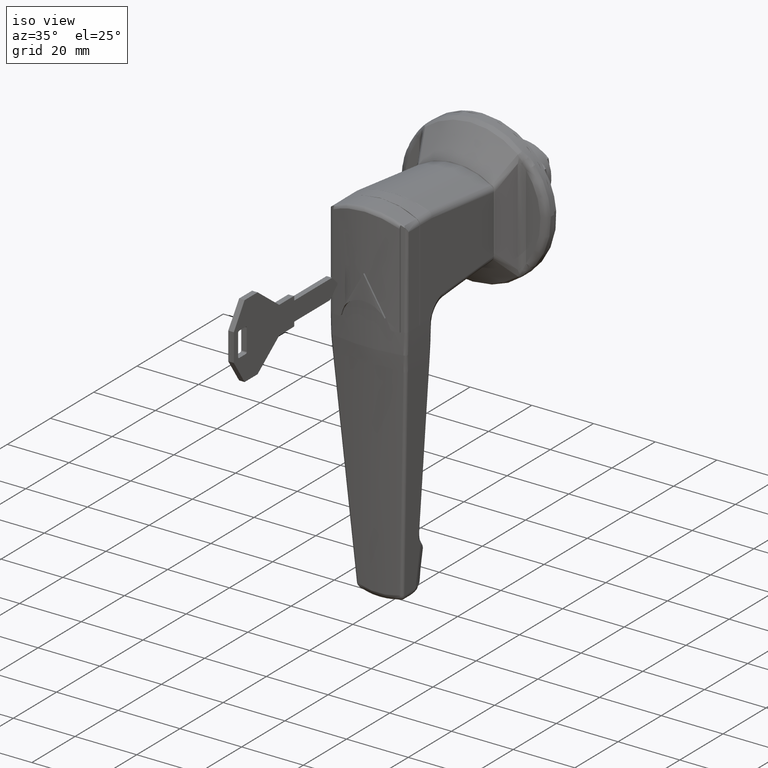
[diagram: clean part render]
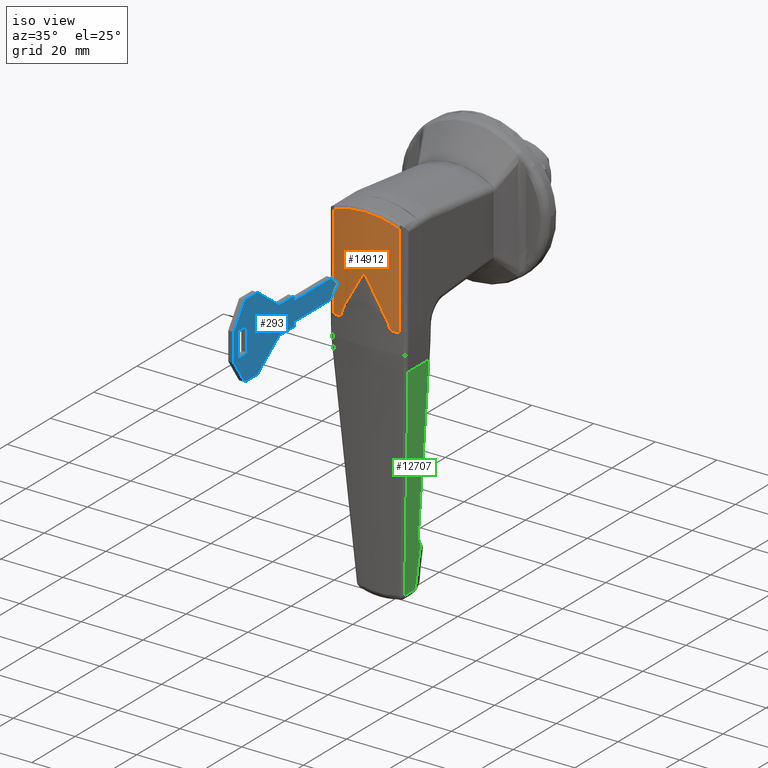
[diagram: same view with three faces highlighted in distinct colors, each labeled with its STEP entity id]
A machine part, iso view with three faces highlighted in distinct colors.
Their STEP definitions:

[orange] entity #14912 — the highlighted face is a freeform B-spline surface patch.
#14339=CARTESIAN_POINT('',(-43.537279000000098,10.750000000000000,13.426115094219099));
#14340=VERTEX_POINT('',#14339);
#14358=CARTESIAN_POINT('',(-43.537278215540503,-10.750000124898760,13.426114976657461));
#14359=VERTEX_POINT('',#14358);
#14360=CARTESIAN_POINT('',(-43.537278215540503,-10.750000124898779,13.426114976657461));
#14361=CARTESIAN_POINT('',(-43.686708591824612,-9.922402191567278,13.847389578444931));
#14362=CARTESIAN_POINT('',(-43.822458786155167,-9.071986116519360,14.218833909848970));
#14363=CARTESIAN_POINT('',(-43.971818558240159,-7.979948184355112,14.620840445735800));
#14364=CARTESIAN_POINT('',(-44.000673693513292,-7.760084927824916,14.698115481884690));
#14365=CARTESIAN_POINT('',(-44.056266915473032,-7.317415249934289,14.846367005541630));
#14366=CARTESIAN_POINT('',(-44.082959700022052,-7.094947018606865,14.917222255324010));
#14367=CARTESIAN_POINT('',(-44.159399970210487,-6.426342137599623,15.119366884822499));
#14368=CARTESIAN_POINT('',(-44.205619818686174,-5.978137840326531,15.240538985697871));
#14369=CARTESIAN_POINT('',(-44.329655966135171,-4.626204726149862,15.563954815738430));
#14370=CARTESIAN_POINT('',(-44.392857058287298,-3.715178835734724,15.726239507692050));
#14371=CARTESIAN_POINT('',(-44.478009653531743,-1.873522295447263,15.944214853267169));
#14372=CARTESIAN_POINT('',(-44.499968688150190,-0.942894483352474,15.999920336488390));
#14373=CARTESIAN_POINT('',(-44.500031244988733,0.938871998346723,16.000079493404151));
#14374=CARTESIAN_POINT('',(-44.478127893306848,1.869949401578251,15.944516047425680));
#14375=CARTESIAN_POINT('',(-44.393022437078471,3.712614329307406,15.726664321190331));
#14376=CARTESIAN_POINT('',(-44.329812961171861,4.624323888622818,15.564362127514631));
#14377=CARTESIAN_POINT('',(-44.205683100388207,5.977532789943253,15.240705007749010));
#14378=CARTESIAN_POINT('',(-44.159418524964337,6.426204165911926,15.119416543633511));
#14379=CARTESIAN_POINT('',(-44.082886989523452,7.095570823767758,14.917029678042320));
#14380=CARTESIAN_POINT('',(-44.056151829886289,7.318356122482541,14.846060913556929));
#14381=CARTESIAN_POINT('',(-44.000582050683860,7.760790071183724,14.697870284175750));
#14382=CARTESIAN_POINT('',(-43.971738267909892,7.980549028885677,14.620624947482790));
#14383=CARTESIAN_POINT('',(-43.822431517954087,9.072130186117951,14.218758090278261));
#14384=CARTESIAN_POINT('',(-43.686711308371450,9.922387128016606,13.847397234812870));
#14385=CARTESIAN_POINT('',(-43.537279000000098,10.750000000000000,13.426115094219099));
#14386=B_SPLINE_CURVE_WITH_KNOTS('',3,(#14360,#14361,#14362,#14363,#14364,#14365,#14366,#14367,#14368,#14369,#14370,#14371,#14372,#14373,#14374,#14375,#14376,#14377,#14378,#14379,#14380,#14381,#14382,#14383,#14384,#14385),.UNSPECIFIED.,.F.,.U.,(4,2,2,2,2,2,2,2,2,2,2,2,4),(0.0,0.125000000000000,0.156250000000000,0.187500000000000,0.250000000000000,0.375000000000000,0.500000000000000,0.625000000000000,0.750000000000000,0.812500000000000,0.843750000000000,0.875000000000000,1.0),.UNSPECIFIED.);
#14387=EDGE_CURVE('',#14359,#14340,#14386,.T.);
#14698=CARTESIAN_POINT('',(-43.537278215540503,-10.750000124898760,-17.0));
#14699=VERTEX_POINT('',#14698);
#14700=CARTESIAN_POINT('',(-43.537278215540503,-10.750000124898760,13.426114976657461));
#14701=CARTESIAN_POINT('',(-43.537278215540503,-10.750000124898760,-17.0));
#14702=QUASI_UNIFORM_CURVE('',1,(#14700,#14701),.UNSPECIFIED.,.F.,.U.);
#14703=EDGE_CURVE('',#14359,#14699,#14702,.T.);
#14713=CARTESIAN_POINT('',(-43.337462433006827,11.803200922271046,16.825000000311807));
#14714=CARTESIAN_POINT('',(-43.337462433006827,11.803200922271046,-17.845625000007797));
#14715=CARTESIAN_POINT('',(-45.685525333926883,-0.001062606852432,16.825000000311810));
#14716=CARTESIAN_POINT('',(-45.685525333926883,-0.001062606852432,-17.845625000007786));
#14717=CARTESIAN_POINT('',(-43.337055749323369,-11.805245232594203,16.825000000311810));
#14718=CARTESIAN_POINT('',(-43.337055749323369,-11.805245232594203,-17.845625000007782));
#14726=(BOUNDED_SURFACE()B_SPLINE_SURFACE(1,2,((#14713,#14715,#14717),(#14714,#14716,#14718)),.UNSPECIFIED.,.F.,.F.,.U.)B_SPLINE_SURFACE_WITH_KNOTS((2,2),(3,3),(0.0,34.670625000319603),(0.0,23.837504803303339),.UNSPECIFIED.)GEOMETRIC_REPRESENTATION_ITEM()RATIONAL_B_SPLINE_SURFACE(((0.998777720247082,0.978586662766848,0.996748349218564),(0.998777720247082,0.978586662766848,0.996748349218564)))REPRESENTATION_ITEM('')SURFACE());
#14727=CARTESIAN_POINT('',(-43.995087250165803,7.799968323332790,-16.222222130015648));
#14728=VERTEX_POINT('',#14727);
#14729=CARTESIAN_POINT('',(-44.137342838481949,6.614377999999999,-13.499999999999719));
#14730=VERTEX_POINT('',#14729);
#14731=CARTESIAN_POINT('',(-43.995087250165803,7.799968323332790,-16.222222130015648));
#14732=CARTESIAN_POINT('',(-44.008011266776037,7.700557277176603,-15.786072890913610));
#14733=CARTESIAN_POINT('',(-44.025410424252492,7.565067411216221,-15.359256640164050));
#14734=CARTESIAN_POINT('',(-44.051971471999131,7.349316491213052,-14.837705728991530));
#14735=CARTESIAN_POINT('',(-44.057537495075529,7.303719255530198,-14.733771608657360));
#14736=CARTESIAN_POINT('',(-44.069031400243119,7.208576080806815,-14.528838259513689));
#14737=CARTESIAN_POINT('',(-44.074964273674922,7.158991483897222,-14.427715608141870));
#14738=CARTESIAN_POINT('',(-44.093263744136038,7.004298722087343,-14.128309470296630));
#14739=CARTESIAN_POINT('',(-44.106130933475427,6.893262186731714,-13.933980774554099));
#14740=CARTESIAN_POINT('',(-44.125364767548469,6.722570540497400,-13.662235812897229));
#14741=CARTESIAN_POINT('',(-44.131310134508951,6.669216534792989,-13.580624119799729));
#14742=CARTESIAN_POINT('',(-44.137342838481949,6.614377999999999,-13.499999999999719));
#14743=B_SPLINE_CURVE_WITH_KNOTS('',3,(#14731,#14732,#14733,#14734,#14735,#14736,#14737,#14738,#14739,#14740,#14741,#14742),.UNSPECIFIED.,.F.,.U.,(4,2,2,2,2,4),(0.0,0.062500000000000,0.078125000000000,0.093750000000000,0.125000000000000,0.138645389448752),.UNSPECIFIED.);
#14744=EDGE_CURVE('',#14728,#14730,#14743,.T.);
#14745=ORIENTED_EDGE('',*,*,#14744,.T.);
#14746=CARTESIAN_POINT('',(-44.134571334608353,6.639527874999950,-13.499999999999741));
#14747=VERTEX_POINT('',#14746);
#14748=CARTESIAN_POINT('',(-44.137342838481949,6.614377999999999,-13.499999999999741));
#14749=CARTESIAN_POINT('',(-44.135959716072030,6.626953227262900,-13.499999999999744));
#14750=CARTESIAN_POINT('',(-44.134571334608331,6.639527874999948,-13.499999999999741));
#14758=(BOUNDED_CURVE()B_SPLINE_CURVE(2,(#14748,#14749,#14750),.UNSPECIFIED.,.F.,.U.)CURVE()GEOMETRIC_REPRESENTATION_ITEM()QUASI_UNIFORM_CURVE()RATIONAL_B_SPLINE_CURVE((1.0,0.999999978136826,1.0))REPRESENTATION_ITEM(''));
#14759=EDGE_CURVE('',#14730,#14747,#14758,.T.);
#14760=ORIENTED_EDGE('',*,*,#14759,.T.);
#14761=CARTESIAN_POINT('',(-44.500000000000000,0.0,-2.0));
#14762=VERTEX_POINT('',#14761);
#14763=CARTESIAN_POINT('',(-44.134571334608331,6.639527874999965,-13.499999999999741));
#14764=CARTESIAN_POINT('',(-44.500000000000000,3.329820233068273,-7.767418015439009));
#14765=CARTESIAN_POINT('',(-44.500000000000000,3.704434E-015,-2.000000000000007));
#14773=(BOUNDED_CURVE()B_SPLINE_CURVE(2,(#14763,#14764,#14765),.UNSPECIFIED.,.F.,.U.)CURVE()GEOMETRIC_REPRESENTATION_ITEM()QUASI_UNIFORM_CURVE()RATIONAL_B_SPLINE_CURVE((1.0,0.998488822363744,1.0))REPRESENTATION_ITEM(''));
#14774=EDGE_CURVE('',#14747,#14762,#14773,.T.);
#14775=ORIENTED_EDGE('',*,*,#14774,.T.);
#14776=CARTESIAN_POINT('',(-44.134571320806963,-6.639527999999999,-13.499999999999741));
#14777=VERTEX_POINT('',#14776);
#14778=CARTESIAN_POINT('',(-44.500000000000000,1.111330E-014,-1.999999999999981));
#14779=CARTESIAN_POINT('',(-44.500000000000007,-3.329820248835866,-7.767418042749276));
#14780=CARTESIAN_POINT('',(-44.134571320806963,-6.639527999999999,-13.499999999999741));
#14788=(BOUNDED_CURVE()B_SPLINE_CURVE(2,(#14778,#14779,#14780),.UNSPECIFIED.,.F.,.U.)CURVE()GEOMETRIC_REPRESENTATION_ITEM()QUASI_UNIFORM_CURVE()RATIONAL_B_SPLINE_CURVE((1.0,0.998488822349251,1.0))REPRESENTATION_ITEM(''));
#14789=EDGE_CURVE('',#14762,#14777,#14788,.T.);
#14790=ORIENTED_EDGE('',*,*,#14789,.T.);
#14791=CARTESIAN_POINT('',(-44.137342807942552,-6.614378277661491,-13.499999999999741));
#14792=VERTEX_POINT('',#14791);
#14793=CARTESIAN_POINT('',(-44.134571320806927,-6.639527999999993,-13.499999999999741));
#14794=CARTESIAN_POINT('',(-44.135959693869111,-6.626953428595621,-13.499999999999742));
#14795=CARTESIAN_POINT('',(-44.137342807942552,-6.614378277661513,-13.499999999999741));
#14803=(BOUNDED_CURVE()B_SPLINE_CURVE(2,(#14793,#14794,#14795),.UNSPECIFIED.,.F.,.U.)CURVE()GEOMETRIC_REPRESENTATION_ITEM()QUASI_UNIFORM_CURVE()RATIONAL_B_SPLINE_CURVE((1.0,0.999999978137092,1.0))REPRESENTATION_ITEM(''));
#14804=EDGE_CURVE('',#14777,#14792,#14803,.T.);
#14805=ORIENTED_EDGE('',*,*,#14804,.T.);
#14806=CARTESIAN_POINT('',(-43.995087293629901,-7.799967989019470,-16.222222362898101));
#14807=VERTEX_POINT('',#14806);
#14808=CARTESIAN_POINT('',(-44.137342807942552,-6.614378277661491,-13.499999999999741));
#14809=CARTESIAN_POINT('',(-44.131298120357812,-6.669335661255566,-13.580780432788631));
#14810=CARTESIAN_POINT('',(-44.125346010058813,-6.722756579040190,-13.662487155540891));
#14811=CARTESIAN_POINT('',(-44.092732048890262,-7.012179301676098,-14.123306641007140));
#14812=CARTESIAN_POINT('',(-44.068144593405087,-7.217916513121144,-14.520681940746019));
#14813=CARTESIAN_POINT('',(-44.041546378487972,-7.434015494206209,-15.042274447424900));
#14814=CARTESIAN_POINT('',(-44.036425023933582,-7.475237834955387,-15.148060283879699));
#14815=CARTESIAN_POINT('',(-44.026718217799747,-7.552788466590473,-15.360278327841190));
#14816=CARTESIAN_POINT('',(-44.022123121213248,-7.589196550540373,-15.466878031313581));
#14817=CARTESIAN_POINT('',(-44.009137603486167,-7.691431436974204,-15.788126879079179));
#14818=CARTESIAN_POINT('',(-44.001547051387533,-7.750281190647446,-16.004223245653431));
#14819=CARTESIAN_POINT('',(-43.995087293629901,-7.799967989019470,-16.222222362898101));
#14820=B_SPLINE_CURVE_WITH_KNOTS('',3,(#14808,#14809,#14810,#14811,#14812,#14813,#14814,#14815,#14816,#14817,#14818,#14819),.UNSPECIFIED.,.F.,.U.,(4,2,2,2,2,4),(0.861344992751440,0.874999999999999,0.937499999999999,0.953125000000000,0.968750000000000,1.0),.UNSPECIFIED.);
#14821=EDGE_CURVE('',#14792,#14807,#14820,.T.);
#14822=ORIENTED_EDGE('',*,*,#14821,.T.);
#14823=CARTESIAN_POINT('',(-43.860253982076500,-8.774963999999999,-17.0));
#14824=VERTEX_POINT('',#14823);
#14825=CARTESIAN_POINT('',(-43.860253982076451,-8.774963999999999,-17.0));
#14826=CARTESIAN_POINT('',(-43.876780436062361,-8.662225334289175,-17.0));
#14827=CARTESIAN_POINT('',(-43.892532015086680,-8.552554872794634,-16.981464846931448));
#14828=CARTESIAN_POINT('',(-43.915071956085818,-8.392678297459419,-16.925765849467169));
#14829=CARTESIAN_POINT('',(-43.922209379548178,-8.341537874184741,-16.902911999885092));
#14830=CARTESIAN_POINT('',(-43.935725930092779,-8.243857608284648,-16.849137378022419));
#14831=CARTESIAN_POINT('',(-43.942116036930663,-8.197238770117522,-16.818189455301940));
#14832=CARTESIAN_POINT('',(-43.954164578364797,-8.108646505399276,-16.747811087373702));
#14833=CARTESIAN_POINT('',(-43.959682793402990,-8.067704664220178,-16.709163807993271));
#14834=CARTESIAN_POINT('',(-43.969683645725297,-7.993025876738636,-16.625860883907698));
#14835=CARTESIAN_POINT('',(-43.974183734213078,-7.959159255166562,-16.581103189666550));
#14836=CARTESIAN_POINT('',(-43.982179829459007,-7.898672897436208,-16.485110505246929));
#14837=CARTESIAN_POINT('',(-43.985586329145953,-7.872731575007244,-16.434883559816480));
#14838=CARTESIAN_POINT('',(-43.991211360034583,-7.829752822356245,-16.331244454993989));
#14839=CARTESIAN_POINT('',(-43.993444723230297,-7.812602163242711,-16.277654540420940));
#14840=CARTESIAN_POINT('',(-43.995087293629886,-7.799967989019451,-16.222222362898108));
#14841=B_SPLINE_CURVE_WITH_KNOTS('',3,(#14825,#14826,#14827,#14828,#14829,#14830,#14831,#14832,#14833,#14834,#14835,#14836,#14837,#14838,#14839,#14840),.UNSPECIFIED.,.F.,.U.,(4,2,2,2,2,2,2,4),(0.0,0.250000000000002,0.375000000000001,0.500000000000001,0.625000000000001,0.750000000000000,0.875000000000000,1.0),.UNSPECIFIED.);
#14842=EDGE_CURVE('',#14824,#14807,#14841,.T.);
#14843=ORIENTED_EDGE('',*,*,#14842,.F.);
#14844=CARTESIAN_POINT('',(-43.537278215540532,-10.750000124898760,-17.0));
#14845=CARTESIAN_POINT('',(-43.715101309523725,-9.765153343817886,-17.0));
#14846=CARTESIAN_POINT('',(-43.860253982076493,-8.774963999999995,-17.0));
#14854=(BOUNDED_CURVE()B_SPLINE_CURVE(2,(#14844,#14845,#14846),.UNSPECIFIED.,.F.,.U.)CURVE()GEOMETRIC_REPRESENTATION_ITEM()QUASI_UNIFORM_CURVE()RATIONAL_B_SPLINE_CURVE((1.0,0.999863214432832,1.0))REPRESENTATION_ITEM(''));
#14855=EDGE_CURVE('',#14699,#14824,#14854,.T.);
#14856=ORIENTED_EDGE('',*,*,#14855,.F.);
#14857=ORIENTED_EDGE('',*,*,#14703,.F.);
#14858=ORIENTED_EDGE('',*,*,#14387,.T.);
#14859=CARTESIAN_POINT('',(-43.537279000000098,10.750000000000000,-17.0));
#14860=VERTEX_POINT('',#14859);
#14861=CARTESIAN_POINT('',(-43.537279000000098,10.750000000000000,13.426115094219099));
#14862=CARTESIAN_POINT('',(-43.537279000000098,10.750000000000000,-17.0));
#14863=QUASI_UNIFORM_CURVE('',1,(#14861,#14862),.UNSPECIFIED.,.F.,.U.);
#14864=EDGE_CURVE('',#14340,#14860,#14863,.T.);
#14865=ORIENTED_EDGE('',*,*,#14864,.T.);
#14866=CARTESIAN_POINT('',(-43.860253982076451,8.774963999999999,-17.0));
#14867=VERTEX_POINT('',#14866);
#14868=CARTESIAN_POINT('',(-43.860253982076493,8.774963999999981,-17.0));
#14869=CARTESIAN_POINT('',(-43.715101328550944,9.765153214019755,-16.999999999999996));
#14870=CARTESIAN_POINT('',(-43.537279000000098,10.750000000000000,-17.0));
#14878=(BOUNDED_CURVE()B_SPLINE_CURVE(2,(#14868,#14869,#14870),.UNSPECIFIED.,.F.,.U.)CURVE()GEOMETRIC_REPRESENTATION_ITEM()QUASI_UNIFORM_CURVE()RATIONAL_B_SPLINE_CURVE((1.0,0.999863214468686,1.0))REPRESENTATION_ITEM(''));
#14879=EDGE_CURVE('',#14867,#14860,#14878,.T.);
#14880=ORIENTED_EDGE('',*,*,#14879,.F.);
#14881=CARTESIAN_POINT('',(-43.995087250165803,7.799968323332790,-16.222222130015648));
#14882=CARTESIAN_POINT('',(-43.994276627142497,7.806203400110804,-16.249580120712618));
#14883=CARTESIAN_POINT('',(-43.993314426683192,7.813597050715172,-16.276714841398551));
#14884=CARTESIAN_POINT('',(-43.991078461097970,7.830745803830358,-16.330529140393999));
#14885=CARTESIAN_POINT('',(-43.989797823252012,7.840553327629167,-16.357316330083972));
#14886=CARTESIAN_POINT('',(-43.985544405236148,7.873051494791209,-16.435599461074879));
#14887=CARTESIAN_POINT('',(-43.982155013780137,7.898859797768155,-16.485365029371849));
#14888=CARTESIAN_POINT('',(-43.976237346408837,7.943625137034108,-16.556471150329418));
#14889=CARTESIAN_POINT('',(-43.974125081956828,7.959561150638549,-16.579579644594279));
#14890=CARTESIAN_POINT('',(-43.969611049513077,7.993500086137214,-16.624586681338211));
#14891=CARTESIAN_POINT('',(-43.967199125887468,8.011578420677212,-16.646556789885260));
#14892=CARTESIAN_POINT('',(-43.959645957381952,8.067979663051181,-16.709468849469740));
#14893=CARTESIAN_POINT('',(-43.954160791339483,8.108671222570457,-16.747778507482160));
#14894=CARTESIAN_POINT('',(-43.945246211009142,8.174224305637617,-16.799932190872550));
#14895=CARTESIAN_POINT('',(-43.942159641414577,8.196831970708004,-16.816426904199549));
#14896=CARTESIAN_POINT('',(-43.935747250601629,8.243588923815413,-16.847602537516231));
#14897=CARTESIAN_POINT('',(-43.932409438777277,8.267824055782889,-16.862320511328161));
#14898=CARTESIAN_POINT('',(-43.922205914861500,8.341564680287974,-16.902948159522090));
#14899=CARTESIAN_POINT('',(-43.915104476577547,8.392441352876658,-16.925621553242269));
#14900=CARTESIAN_POINT('',(-43.903992928581573,8.471265270761956,-16.953174585638131));
#14901=CARTESIAN_POINT('',(-43.900212200241270,8.497960281450830,-16.961277072773321));
#14902=CARTESIAN_POINT('',(-43.892491236948260,8.552206967276142,-16.975276358321992));
#14903=CARTESIAN_POINT('',(-43.888539504254020,8.579837851971240,-16.981179686106259));
#14904=CARTESIAN_POINT('',(-43.876607509258491,8.662851681580305,-16.995279854285730));
#14905=CARTESIAN_POINT('',(-43.868506039671452,8.718670861531111,-17.0));
#14906=CARTESIAN_POINT('',(-43.860253982076451,8.774963999999999,-17.0));
#14907=B_SPLINE_CURVE_WITH_KNOTS('',3,(#14881,#14882,#14883,#14884,#14885,#14886,#14887,#14888,#14889,#14890,#14891,#14892,#14893,#14894,#14895,#14896,#14897,#14898,#14899,#14900,#14901,#14902,#14903,#14904,#14905,#14906),.UNSPECIFIED.,.F.,.U.,(4,2,2,2,2,2,2,2,2,2,2,2,4),(0.0,0.062499999999997,0.124999999999994,0.249999999999997,0.312500000000003,0.375000000000009,0.500000000000017,0.562500000000019,0.625000000000021,0.750000000000019,0.812500000000015,0.875000000000012,1.0),.UNSPECIFIED.);
#14908=EDGE_CURVE('',#14728,#14867,#14907,.T.);
#14909=ORIENTED_EDGE('',*,*,#14908,.F.);
#14910=EDGE_LOOP('',(#14745,#14760,#14775,#14790,#14805,#14822,#14843,#14856,#14857,#14858,#14865,#14880,#14909));
#14911=FACE_OUTER_BOUND('',#14910,.T.);
#14912=ADVANCED_FACE('',(#14911),#14726,.T.);

[blue] entity #293 — the highlighted face is a freeform B-spline surface patch.
#44=CARTESIAN_POINT('',(-103.733763654037300,-0.900000000000000,13.198799953483350));
#45=CARTESIAN_POINT('',(-50.938627942001659,-0.900000000000000,13.198799953483350));
#46=CARTESIAN_POINT('',(-103.733763654037300,-0.900000000000000,-13.198800597213509));
#47=CARTESIAN_POINT('',(-50.938627942001659,-0.900000000000000,-13.198800597213509));
#48=B_SPLINE_SURFACE_WITH_KNOTS('',1,1,((#44,#46),(#45,#47)),.UNSPECIFIED.,.F.,.F.,.U.,(2,2),(2,2),(0.0,52.795135712035659),(0.0,26.397600550696851),.UNSPECIFIED.);
#49=CARTESIAN_POINT('',(-101.336164999999990,-0.900000000000012,4.500000582522990));
#50=VERTEX_POINT('',#49);
#51=CARTESIAN_POINT('',(-96.336164569421712,-0.900000000000012,12.0));
#52=VERTEX_POINT('',#51);
#53=CARTESIAN_POINT('',(-101.336164999999990,-0.900000000000012,4.500000582522990));
#54=CARTESIAN_POINT('',(-96.336164569421712,-0.900000000000012,12.0));
#55=QUASI_UNIFORM_CURVE('',1,(#53,#54),.UNSPECIFIED.,.F.,.U.);
#56=EDGE_CURVE('',#50,#52,#55,.T.);
#57=ORIENTED_EDGE('',*,*,#56,.F.);
#58=CARTESIAN_POINT('',(-101.336164999999990,-0.900000000000012,-4.500000582522980));
#59=VERTEX_POINT('',#58);
#60=CARTESIAN_POINT('',(-101.336164999999990,-0.900000000000012,-4.500000582522980));
#61=CARTESIAN_POINT('',(-101.336164999999990,-0.900000000000012,4.500000582522990));
#62=QUASI_UNIFORM_CURVE('',1,(#60,#61),.UNSPECIFIED.,.F.,.U.);
#63=EDGE_CURVE('',#59,#50,#62,.T.);
#64=ORIENTED_EDGE('',*,*,#63,.F.);
#65=CARTESIAN_POINT('',(-96.336164569421712,-0.900000000000012,-12.0));
#66=VERTEX_POINT('',#65);
#67=CARTESIAN_POINT('',(-96.336164569421712,-0.900000000000012,-12.0));
#68=CARTESIAN_POINT('',(-101.336164999999990,-0.900000000000012,-4.500000582522980));
#69=QUASI_UNIFORM_CURVE('',1,(#67,#68),.UNSPECIFIED.,.F.,.U.);
#70=EDGE_CURVE('',#66,#59,#69,.T.);
#71=ORIENTED_EDGE('',*,*,#70,.F.);
#72=CARTESIAN_POINT('',(-90.336165352112701,-0.900000000000012,-12.0));
#73=VERTEX_POINT('',#72);
#74=CARTESIAN_POINT('',(-90.336165352112701,-0.900000000000012,-12.0));
#75=CARTESIAN_POINT('',(-96.336164569421712,-0.900000000000012,-12.0));
#76=QUASI_UNIFORM_CURVE('',1,(#74,#75),.UNSPECIFIED.,.F.,.U.);
#77=EDGE_CURVE('',#73,#66,#76,.T.);
#78=ORIENTED_EDGE('',*,*,#77,.F.);
#79=CARTESIAN_POINT('',(-80.336164999999909,-0.900000000000012,-4.500000000000000));
#80=VERTEX_POINT('',#79);
#81=CARTESIAN_POINT('',(-80.336164999999909,-0.900000000000012,-4.500000000000000));
#82=CARTESIAN_POINT('',(-90.336165352112701,-0.900000000000012,-12.0));
#83=QUASI_UNIFORM_CURVE('',1,(#81,#82),.UNSPECIFIED.,.F.,.U.);
#84=EDGE_CURVE('',#80,#73,#83,.T.);
#85=ORIENTED_EDGE('',*,*,#84,.F.);
#86=CARTESIAN_POINT('',(-73.636164999999892,-0.900000000000012,-4.500000000000000));
#87=VERTEX_POINT('',#86);
#88=CARTESIAN_POINT('',(-73.636164999999892,-0.900000000000012,-4.500000000000000));
#89=CARTESIAN_POINT('',(-80.336164999999909,-0.900000000000012,-4.500000000000000));
#90=QUASI_UNIFORM_CURVE('',1,(#88,#89),.UNSPECIFIED.,.F.,.U.);
#91=EDGE_CURVE('',#87,#80,#90,.T.);
#92=ORIENTED_EDGE('',*,*,#91,.F.);
#93=CARTESIAN_POINT('',(-73.336164999999895,-0.900000000000012,-4.200000000000045));
#94=VERTEX_POINT('',#93);
#95=CARTESIAN_POINT('',(-73.636164999999892,-0.900000000000012,-4.500000000000044));
#96=CARTESIAN_POINT('',(-73.336164999999895,-0.900000000000012,-4.500000000000044));
#97=CARTESIAN_POINT('',(-73.336164999999895,-0.900000000000012,-4.200000000000045));
#105=(BOUNDED_CURVE()B_SPLINE_CURVE(2,(#95,#96,#97),.UNSPECIFIED.,.F.,.U.)CURVE()GEOMETRIC_REPRESENTATION_ITEM()QUASI_UNIFORM_CURVE()RATIONAL_B_SPLINE_CURVE((1.0,0.707106781186547,1.0))REPRESENTATION_ITEM(''));
#106=EDGE_CURVE('',#87,#94,#105,.T.);
#107=ORIENTED_EDGE('',*,*,#106,.T.);
#108=CARTESIAN_POINT('',(-73.336164999999895,-0.900000000000012,-3.100000000000000));
#109=VERTEX_POINT('',#108);
#110=CARTESIAN_POINT('',(-73.336164999999895,-0.900000000000012,-3.100000000000000));
#111=CARTESIAN_POINT('',(-73.336164999999895,-0.900000000000012,-4.200000000000045));
#112=QUASI_UNIFORM_CURVE('',1,(#110,#111),.UNSPECIFIED.,.F.,.U.);
#113=EDGE_CURVE('',#109,#94,#112,.T.);
#114=ORIENTED_EDGE('',*,*,#113,.F.);
#115=CARTESIAN_POINT('',(-56.836164999999902,-0.900000000000012,-3.100000000000000));
#116=VERTEX_POINT('',#115);
#117=CARTESIAN_POINT('',(-56.836164999999902,-0.900000000000012,-3.100000000000000));
#118=CARTESIAN_POINT('',(-73.336164999999895,-0.900000000000012,-3.100000000000000));
#119=QUASI_UNIFORM_CURVE('',1,(#117,#118),.UNSPECIFIED.,.F.,.U.);
#120=EDGE_CURVE('',#116,#109,#119,.T.);
#121=ORIENTED_EDGE('',*,*,#120,.F.);
#122=CARTESIAN_POINT('',(-53.494070531371797,-0.900000000000012,0.035347597657623));
#123=VERTEX_POINT('',#122);
#124=CARTESIAN_POINT('',(-53.494070531371797,-0.900000000000012,0.035347597657623));
#125=CARTESIAN_POINT('',(-56.836164999999902,-0.900000000000012,-3.100000000000000));
#126=QUASI_UNIFORM_CURVE('',1,(#124,#125),.UNSPECIFIED.,.F.,.U.);
#127=EDGE_CURVE('',#123,#116,#126,.T.);
#128=ORIENTED_EDGE('',*,*,#127,.F.);
#129=CARTESIAN_POINT('',(-53.483146999999903,-0.900000000000012,0.754087999999854));
#130=VERTEX_POINT('',#129);
#131=CARTESIAN_POINT('',(-53.494070531371790,-0.900000000000012,0.035347597657615));
#132=CARTESIAN_POINT('',(-53.339444645979249,-0.900000000000012,0.180408098451601));
#133=CARTESIAN_POINT('',(-53.336222735864631,-0.900000000000012,0.392401807365908));
#134=CARTESIAN_POINT('',(-53.333000825750013,-0.900000000000012,0.604395516280215));
#135=CARTESIAN_POINT('',(-53.483146999999903,-0.900000000000012,0.754087999999854));
#143=(BOUNDED_CURVE()B_SPLINE_CURVE(2,(#131,#132,#133,#134,#135),.UNSPECIFIED.,.F.,.U.)B_SPLINE_CURVE_WITH_KNOTS((3,2,3),(0.0,0.500000000000000,1.0),.UNSPECIFIED.)CURVE()GEOMETRIC_REPRESENTATION_ITEM()RATIONAL_B_SPLINE_CURVE((1.0,0.920649968654274,1.0,0.920649968654274,1.0))REPRESENTATION_ITEM(''));
#144=EDGE_CURVE('',#123,#130,#143,.T.);
#145=ORIENTED_EDGE('',*,*,#144,.T.);
#146=CARTESIAN_POINT('',(-55.836164999999902,-0.900000000000012,3.099999999999850));
#147=VERTEX_POINT('',#146);
#148=CARTESIAN_POINT('',(-55.836164999999902,-0.900000000000012,3.099999999999850));
#149=CARTESIAN_POINT('',(-53.483146999999903,-0.900000000000012,0.754087999999854));
#150=QUASI_UNIFORM_CURVE('',1,(#148,#149),.UNSPECIFIED.,.F.,.U.);
#151=EDGE_CURVE('',#147,#130,#150,.T.);
#152=ORIENTED_EDGE('',*,*,#151,.F.);
#153=CARTESIAN_POINT('',(-73.336164999999895,-0.900000000000012,3.099999999999850));
#154=VERTEX_POINT('',#153);
#155=CARTESIAN_POINT('',(-73.336164999999895,-0.900000000000012,3.099999999999850));
#156=CARTESIAN_POINT('',(-55.836164999999902,-0.900000000000012,3.099999999999850));
#157=QUASI_UNIFORM_CURVE('',1,(#155,#156),.UNSPECIFIED.,.F.,.U.);
#158=EDGE_CURVE('',#154,#147,#157,.T.);
#159=ORIENTED_EDGE('',*,*,#158,.F.);
#160=CARTESIAN_POINT('',(-73.336164999999895,-0.900000000000012,4.199999999999760));
#161=VERTEX_POINT('',#160);
#162=CARTESIAN_POINT('',(-73.336164999999895,-0.900000000000012,4.199999999999760));
#163=CARTESIAN_POINT('',(-73.336164999999895,-0.900000000000012,3.099999999999850));
#164=QUASI_UNIFORM_CURVE('',1,(#162,#163),.UNSPECIFIED.,.F.,.U.);
#165=EDGE_CURVE('',#161,#154,#164,.T.);
#166=ORIENTED_EDGE('',*,*,#165,.F.);
#167=CARTESIAN_POINT('',(-73.636164999999892,-0.900000000000012,4.499999999999885));
#168=VERTEX_POINT('',#167);
#169=CARTESIAN_POINT('',(-73.336164999999895,-0.900000000000012,4.199999999999760));
#170=CARTESIAN_POINT('',(-73.336164999999895,-0.900000000000012,4.499999999999758));
#171=CARTESIAN_POINT('',(-73.636164999999892,-0.900000000000012,4.499999999999759));
#179=(BOUNDED_CURVE()B_SPLINE_CURVE(2,(#169,#170,#171),.UNSPECIFIED.,.F.,.U.)CURVE()GEOMETRIC_REPRESENTATION_ITEM()QUASI_UNIFORM_CURVE()RATIONAL_B_SPLINE_CURVE((1.0,0.707106781186547,1.0))REPRESENTATION_ITEM(''));
#180=EDGE_CURVE('',#161,#168,#179,.T.);
#181=ORIENTED_EDGE('',*,*,#180,.T.);
#182=CARTESIAN_POINT('',(-80.336164999999909,-0.900000000000012,4.499999999999885));
#183=VERTEX_POINT('',#182);
#184=CARTESIAN_POINT('',(-80.336164999999909,-0.900000000000012,4.499999999999885));
#185=CARTESIAN_POINT('',(-73.636164999999892,-0.900000000000012,4.499999999999885));
#186=QUASI_UNIFORM_CURVE('',1,(#184,#185),.UNSPECIFIED.,.F.,.U.);
#187=EDGE_CURVE('',#183,#168,#186,.T.);
#188=ORIENTED_EDGE('',*,*,#187,.F.);
#189=CARTESIAN_POINT('',(-90.336165352112786,-0.900000000000012,12.0));
#190=VERTEX_POINT('',#189);
#191=CARTESIAN_POINT('',(-90.336165352112786,-0.900000000000012,12.0));
#192=CARTESIAN_POINT('',(-80.336164999999909,-0.900000000000012,4.499999999999885));
#193=QUASI_UNIFORM_CURVE('',1,(#191,#192),.UNSPECIFIED.,.F.,.U.);
#194=EDGE_CURVE('',#190,#183,#193,.T.);
#195=ORIENTED_EDGE('',*,*,#194,.F.);
#196=CARTESIAN_POINT('',(-96.336164569421712,-0.900000000000012,12.0));
#197=CARTESIAN_POINT('',(-90.336165352112786,-0.900000000000012,12.0));
#198=QUASI_UNIFORM_CURVE('',1,(#196,#197),.UNSPECIFIED.,.F.,.U.);
#199=EDGE_CURVE('',#52,#190,#198,.T.);
#200=ORIENTED_EDGE('',*,*,#199,.F.);
#201=EDGE_LOOP('',(#57,#64,#71,#78,#85,#92,#107,#114,#121,#128,#145,#152,#159,#166,#181,#188,#195,#200));
#202=FACE_OUTER_BOUND('',#201,.T.);
#203=CARTESIAN_POINT('',(-98.836164999999895,-0.900000000000012,4.0));
#204=VERTEX_POINT('',#203);
#205=CARTESIAN_POINT('',(-95.836164999999909,-0.900000000000012,4.0));
#206=VERTEX_POINT('',#205);
#207=CARTESIAN_POINT('',(-98.836164999999895,-0.900000000000012,4.0));
#208=CARTESIAN_POINT('',(-95.836164999999909,-0.900000000000012,4.0));
#209=QUASI_UNIFORM_CURVE('',1,(#207,#208),.UNSPECIFIED.,.F.,.U.);
#210=EDGE_CURVE('',#204,#206,#209,.T.);
#211=ORIENTED_EDGE('',*,*,#210,.T.);
#212=CARTESIAN_POINT('',(-95.336164999999909,-0.900000000000012,3.500000000000000));
#213=VERTEX_POINT('',#212);
#214=CARTESIAN_POINT('',(-95.336164999999909,-0.900000000000012,3.500000000000000));
#215=CARTESIAN_POINT('',(-95.336164999999923,-0.900000000000012,4.000000000000000));
#216=CARTESIAN_POINT('',(-95.836164999999909,-0.900000000000012,4.0));
#224=(BOUNDED_CURVE()B_SPLINE_CURVE(2,(#214,#215,#216),.UNSPECIFIED.,.F.,.U.)CURVE()GEOMETRIC_REPRESENTATION_ITEM()QUASI_UNIFORM_CURVE()RATIONAL_B_SPLINE_CURVE((1.0,0.707106781186548,1.0))REPRESENTATION_ITEM(''));
#225=EDGE_CURVE('',#213,#206,#224,.T.);
#226=ORIENTED_EDGE('',*,*,#225,.F.);
#227=CARTESIAN_POINT('',(-95.336164999999909,-0.900000000000012,-3.500000000000000));
#228=VERTEX_POINT('',#227);
#229=CARTESIAN_POINT('',(-95.336164999999909,-0.900000000000012,3.500000000000000));
#230=CARTESIAN_POINT('',(-95.336164999999909,-0.900000000000012,-3.500000000000000));
#231=QUASI_UNIFORM_CURVE('',1,(#229,#230),.UNSPECIFIED.,.F.,.U.);
#232=EDGE_CURVE('',#213,#228,#231,.T.);
#233=ORIENTED_EDGE('',*,*,#232,.T.);
#234=CARTESIAN_POINT('',(-95.836164999999909,-0.900000000000012,-4.0));
#235=VERTEX_POINT('',#234);
#236=CARTESIAN_POINT('',(-95.836164999999909,-0.900000000000012,-4.0));
#237=CARTESIAN_POINT('',(-95.336164999999923,-0.900000000000012,-4.000000000000000));
#238=CARTESIAN_POINT('',(-95.336164999999909,-0.900000000000012,-3.500000000000000));
#246=(BOUNDED_CURVE()B_SPLINE_CURVE(2,(#236,#237,#238),.UNSPECIFIED.,.F.,.U.)CURVE()GEOMETRIC_REPRESENTATION_ITEM()QUASI_UNIFORM_CURVE()RATIONAL_B_SPLINE_CURVE((1.0,0.707106781186548,1.0))REPRESENTATION_ITEM(''));
#247=EDGE_CURVE('',#235,#228,#246,.T.);
#248=ORIENTED_EDGE('',*,*,#247,.F.);
#249=CARTESIAN_POINT('',(-98.836164999999895,-0.900000000000012,-4.000000000000116));
#250=VERTEX_POINT('',#249);
#251=CARTESIAN_POINT('',(-95.836164999999909,-0.900000000000012,-4.0));
#252=CARTESIAN_POINT('',(-98.836164999999895,-0.900000000000012,-4.000000000000116));
#253=QUASI_UNIFORM_CURVE('',1,(#251,#252),.UNSPECIFIED.,.F.,.U.);
#254=EDGE_CURVE('',#235,#250,#253,.T.);
#255=ORIENTED_EDGE('',*,*,#254,.T.);
#256=CARTESIAN_POINT('',(-99.336164999999895,-0.900000000000012,-3.500000000000000));
#257=VERTEX_POINT('',#256);
#258=CARTESIAN_POINT('',(-99.336164999999895,-0.900000000000012,-3.500000000000000));
#259=CARTESIAN_POINT('',(-99.336164999999895,-0.900000000000012,-4.000000000000000));
#260=CARTESIAN_POINT('',(-98.836164999999895,-0.900000000000012,-4.0));
#268=(BOUNDED_CURVE()B_SPLINE_CURVE(2,(#258,#259,#260),.UNSPECIFIED.,.F.,.U.)CURVE()GEOMETRIC_REPRESENTATION_ITEM()QUASI_UNIFORM_CURVE()RATIONAL_B_SPLINE_CURVE((1.0,0.707106781186548,1.0))REPRESENTATION_ITEM(''));
#269=EDGE_CURVE('',#257,#250,#268,.T.);
#270=ORIENTED_EDGE('',*,*,#269,.F.);
#271=CARTESIAN_POINT('',(-99.336164999999895,-0.900000000000012,3.500000000000000));
#272=VERTEX_POINT('',#271);
#273=CARTESIAN_POINT('',(-99.336164999999895,-0.900000000000012,-3.500000000000000));
#274=CARTESIAN_POINT('',(-99.336164999999895,-0.900000000000012,3.500000000000000));
#275=QUASI_UNIFORM_CURVE('',1,(#273,#274),.UNSPECIFIED.,.F.,.U.);
#276=EDGE_CURVE('',#257,#272,#275,.T.);
#277=ORIENTED_EDGE('',*,*,#276,.T.);
#278=CARTESIAN_POINT('',(-98.836164999999895,-0.900000000000012,4.0));
#279=CARTESIAN_POINT('',(-99.336164999999895,-0.900000000000012,4.000000000000000));
#280=CARTESIAN_POINT('',(-99.336164999999895,-0.900000000000012,3.500000000000000));
#288=(BOUNDED_CURVE()B_SPLINE_CURVE(2,(#278,#279,#280),.UNSPECIFIED.,.F.,.U.)CURVE()GEOMETRIC_REPRESENTATION_ITEM()QUASI_UNIFORM_CURVE()RATIONAL_B_SPLINE_CURVE((1.0,0.707106781186548,1.0))REPRESENTATION_ITEM(''));
#289=EDGE_CURVE('',#204,#272,#288,.T.);
#290=ORIENTED_EDGE('',*,*,#289,.F.);
#291=EDGE_LOOP('',(#211,#226,#233,#248,#255,#270,#277,#290));
#292=FACE_BOUND('',#291,.T.);
#293=ADVANCED_FACE('',(#202,#292),#48,.F.);

[green] entity #12707 — the highlighted face is a freeform B-spline surface patch.
#7409=CARTESIAN_POINT('',(-42.0,-12.073825769527300,-28.897936895261651));
#7410=VERTEX_POINT('',#7409);
#7537=CARTESIAN_POINT('',(-42.0,-8.694515463715909,-80.579964860897306));
#7538=VERTEX_POINT('',#7537);
#7562=CARTESIAN_POINT('',(-42.0,-8.694515463715909,-80.579964860897306));
#7563=CARTESIAN_POINT('',(-42.0,-12.073825769527300,-28.897936895261651));
#7564=QUASI_UNIFORM_CURVE('',1,(#7562,#7563),.UNSPECIFIED.,.F.,.U.);
#7565=EDGE_CURVE('',#7538,#7410,#7564,.T.);
#7628=CARTESIAN_POINT('',(-40.691652699709749,-8.428069505302069,-84.654899160476305));
#7629=VERTEX_POINT('',#7628);
#7661=CARTESIAN_POINT('',(-40.691652699709749,-8.428069505302057,-84.654899160476475));
#7662=CARTESIAN_POINT('',(-42.0,-8.547558896826873,-82.827468852060449));
#7663=CARTESIAN_POINT('',(-42.0,-8.694515463715851,-80.579964860897306));
#7671=(BOUNDED_CURVE()B_SPLINE_CURVE(2,(#7661,#7662,#7663),.UNSPECIFIED.,.F.,.U.)CURVE()GEOMETRIC_REPRESENTATION_ITEM()QUASI_UNIFORM_CURVE()RATIONAL_B_SPLINE_CURVE((1.0,0.952127418682943,1.0))REPRESENTATION_ITEM(''));
#7672=EDGE_CURVE('',#7629,#7538,#7671,.T.);
#9767=CARTESIAN_POINT('',(-46.810766094548200,-7.592145216312230,-97.439242287070698));
#9768=VERTEX_POINT('',#9767);
#9836=CARTESIAN_POINT('',(-46.852808272678203,-7.607287954509600,-97.207654374694911));
#9837=VERTEX_POINT('',#9836);
#9838=CARTESIAN_POINT('',(-46.852808272678203,-7.607287954509600,-97.207654374694911));
#9839=CARTESIAN_POINT('',(-46.847095688982499,-7.602142254482236,-97.286350969162612));
#9840=CARTESIAN_POINT('',(-46.833181107993973,-7.597093499282290,-97.363564922254341));
#9841=CARTESIAN_POINT('',(-46.810766094548200,-7.592145216312230,-97.439242287070698));
#9842=QUASI_UNIFORM_CURVE('',3,(#9838,#9839,#9840,#9841),.UNSPECIFIED.,.F.,.U.);
#9843=EDGE_CURVE('',#9837,#9768,#9842,.T.);
#9878=CARTESIAN_POINT('',(-43.0,-7.592145216312230,-97.439242287070698));
#9879=VERTEX_POINT('',#9878);
#9893=CARTESIAN_POINT('',(-46.810766094548200,-7.592145216312230,-97.439242287070698));
#9894=CARTESIAN_POINT('',(-43.0,-7.592145216312230,-97.439242287070698));
#9895=QUASI_UNIFORM_CURVE('',1,(#9893,#9894),.UNSPECIFIED.,.F.,.U.);
#9896=EDGE_CURVE('',#9768,#9879,#9895,.T.);
#9957=CARTESIAN_POINT('',(-41.857309074168199,-7.601217082741310,-97.300500232609309));
#9958=VERTEX_POINT('',#9957);
#9972=CARTESIAN_POINT('',(-43.0,-7.592145216312230,-97.439242287070698));
#9973=CARTESIAN_POINT('',(-42.806731902380562,-7.592145216312231,-97.439242287070698));
#9974=CARTESIAN_POINT('',(-42.423050116375919,-7.593675854679708,-97.415833221979369));
#9975=CARTESIAN_POINT('',(-42.044944047653502,-7.598196396070048,-97.346697592098366));
#9976=CARTESIAN_POINT('',(-41.857309074168199,-7.601217082741361,-97.300500232609409));
#9977=B_SPLINE_CURVE_WITH_KNOTS('',3,(#9972,#9973,#9974,#9975,#9976),.UNSPECIFIED.,.F.,.U.,(4,1,4),(0.0,0.500000000000000,1.0),.UNSPECIFIED.);
#9978=EDGE_CURVE('',#9879,#9958,#9977,.T.);
#10398=CARTESIAN_POINT('',(-41.857309074168157,-7.601217082741328,-97.300500232609437));
#10399=CARTESIAN_POINT('',(-41.571539382778852,-7.803926360361405,-94.200333155072983));
#10400=CARTESIAN_POINT('',(-41.285769691389469,-8.006635637981507,-91.100166077536542));
#10401=CARTESIAN_POINT('',(-41.0,-8.209344915601619,-87.999999000000187));
#10402=CARTESIAN_POINT('',(-40.897217566569900,-8.282253112168434,-86.884965720158959));
#10403=CARTESIAN_POINT('',(-40.794435133139793,-8.355161308735250,-85.769932440317717));
#10404=CARTESIAN_POINT('',(-40.691652699709692,-8.428069505302062,-84.654899160476489));
#10405=B_SPLINE_CURVE_WITH_KNOTS('',3,(#10398,#10399,#10400,#10401,#10402,#10403,#10404),.UNSPECIFIED.,.F.,.U.,(4,3,4),(0.419075080750242,0.526276600374641,0.564833639089389),.UNSPECIFIED.);
#10406=EDGE_CURVE('',#9958,#7629,#10405,.T.);
#10911=CARTESIAN_POINT('',(-51.636799094111687,-12.073825769527300,-28.897936895261651));
#10912=VERTEX_POINT('',#10911);
#11061=CARTESIAN_POINT('',(-51.636799094111687,-12.073825769527300,-28.897936895261651));
#11062=CARTESIAN_POINT('',(-49.346518719111671,-9.853537041845463,-62.854281158321477));
#11063=CARTESIAN_POINT('',(-46.852808272678203,-7.607287954509600,-97.207654374694911));
#11071=(BOUNDED_CURVE()B_SPLINE_CURVE(2,(#11061,#11062,#11063),.UNSPECIFIED.,.F.,.U.)CURVE()GEOMETRIC_REPRESENTATION_ITEM()QUASI_UNIFORM_CURVE()RATIONAL_B_SPLINE_CURVE((1.0,0.999266857121218,1.0))REPRESENTATION_ITEM(''));
#11072=EDGE_CURVE('',#10912,#9837,#11071,.T.);
#12688=CARTESIAN_POINT('',(-52.183508851600337,-7.368285465660453,-100.862877540000600));
#12689=CARTESIAN_POINT('',(-52.183508851600337,-12.297685480109729,-25.474302255138781));
#12690=CARTESIAN_POINT('',(-40.144944018650683,-7.368285465660453,-100.862877540000600));
#12691=CARTESIAN_POINT('',(-40.144944018650683,-12.297685480109729,-25.474302255138781));
#12692=B_SPLINE_SURFACE_WITH_KNOTS('',1,1,((#12688,#12690),(#12689,#12691)),.UNSPECIFIED.,.F.,.F.,.U.,(2,2),(2,2),(0.0,75.549561666390431),(0.0,12.038564832949660),.UNSPECIFIED.);
#12693=ORIENTED_EDGE('',*,*,#10406,.T.);
#12694=ORIENTED_EDGE('',*,*,#7672,.T.);
#12695=ORIENTED_EDGE('',*,*,#7565,.T.);
#12696=CARTESIAN_POINT('',(-42.0,-12.073825769527300,-28.897936895261651));
#12697=CARTESIAN_POINT('',(-51.636799094111687,-12.073825769527300,-28.897936895261651));
#12698=QUASI_UNIFORM_CURVE('',1,(#12696,#12697),.UNSPECIFIED.,.F.,.U.);
#12699=EDGE_CURVE('',#7410,#10912,#12698,.T.);
#12700=ORIENTED_EDGE('',*,*,#12699,.T.);
#12701=ORIENTED_EDGE('',*,*,#11072,.T.);
#12702=ORIENTED_EDGE('',*,*,#9843,.T.);
#12703=ORIENTED_EDGE('',*,*,#9896,.T.);
#12704=ORIENTED_EDGE('',*,*,#9978,.T.);
#12705=EDGE_LOOP('',(#12693,#12694,#12695,#12700,#12701,#12702,#12703,#12704));
#12706=FACE_OUTER_BOUND('',#12705,.T.);
#12707=ADVANCED_FACE('',(#12706),#12692,.F.);